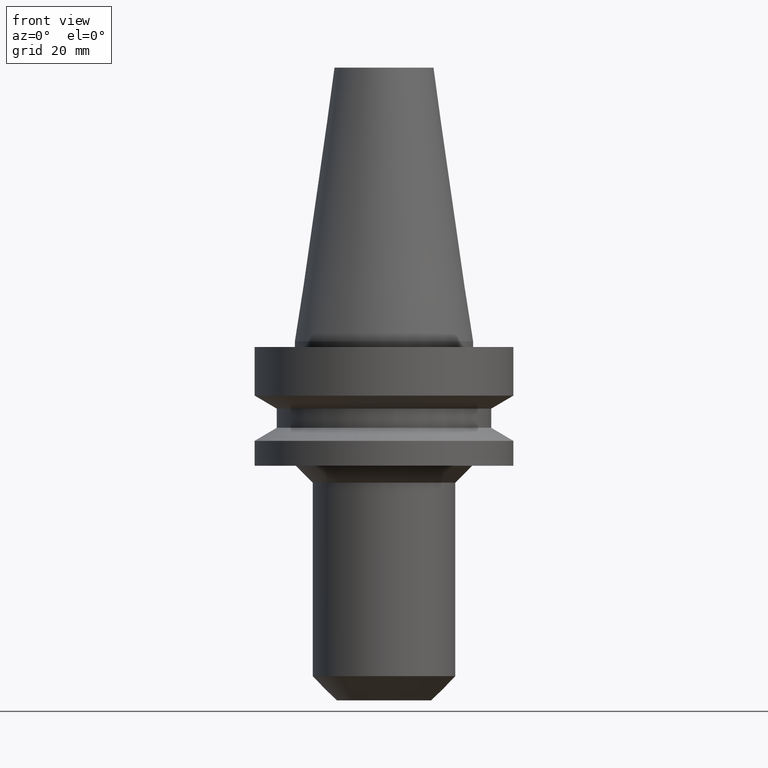
[diagram: clean part render]
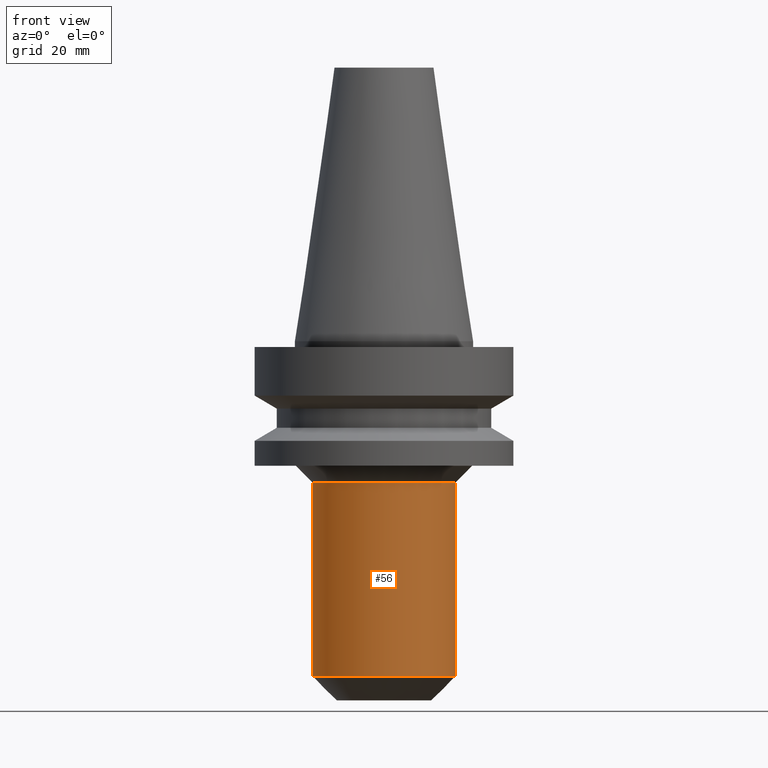
[diagram: same view with one face highlighted and labeled with its STEP entity id]
A machine part, front view. The second image highlights one B-rep face of the part: STEP entity #56.
In plain terms, the highlighted cylindrical surface (bore or boss wall) has radius 12.7 mm, axis along (0, 0, -1).
Its self-contained STEP definition (entity closure, byte-faithful):
#56=ADVANCED_FACE('Unnamed[1]',(#143,#144),#145,.T.);
#65=EDGE_CURVE('Unnamed[1]',#157,#157,#158,.T.);
#81=EDGE_CURVE('Unnamed[1]',#181,#181,#182,.T.);
#143=FACE_BOUND('',#260,.T.);
#144=FACE_BOUND('',#261,.T.);
#145=CYLINDRICAL_SURFACE('',#262,12.7000000000001);
#157=VERTEX_POINT('',#278);
#158=CIRCLE('',#279,12.7000000000001);
#181=VERTEX_POINT('',#309);
#182=CIRCLE('',#310,12.7000000000001);
#260=EDGE_LOOP('',(#394));
#261=EDGE_LOOP('',(#395));
#262=AXIS2_PLACEMENT_3D('',#396,#397,#398);
#278=CARTESIAN_POINT('',(1.53080849893419E-015,12.7000000000001,-25.0));
#279=AXIS2_PLACEMENT_3D('',#410,#411,#412);
#309=CARTESIAN_POINT('',(3.62495452547619E-015,12.7000000000001,-59.2000000000004));
#310=AXIS2_PLACEMENT_3D('',#436,#437,#438);
#394=ORIENTED_EDGE('',*,*,#81,.F.);
#395=ORIENTED_EDGE('',*,*,#65,.T.);
#396=CARTESIAN_POINT('',(2.57788151220519E-015,5.15576302441038E-015,-42.1000000000002));
#397=DIRECTION('',(6.12323399573677E-017,1.22464679914735E-016,-1.0));
#398=DIRECTION('',(-1.23259516440783E-032,1.0,1.22464679914735E-016));
#410=CARTESIAN_POINT('',(1.53080849893419E-015,3.06161699786839E-015,-25.0));
#411=DIRECTION('',(6.12323399573677E-017,1.22464679914735E-016,-1.0));
#412=DIRECTION('',(-1.23259516440783E-032,1.0,1.22464679914735E-016));
#436=CARTESIAN_POINT('',(3.62495452547619E-015,7.24990905095238E-015,-59.2000000000004));
#437=DIRECTION('',(6.12323399573677E-017,1.22464679914735E-016,-1.0));
#438=DIRECTION('',(-1.23259516440783E-032,1.0,1.22464679914735E-016));